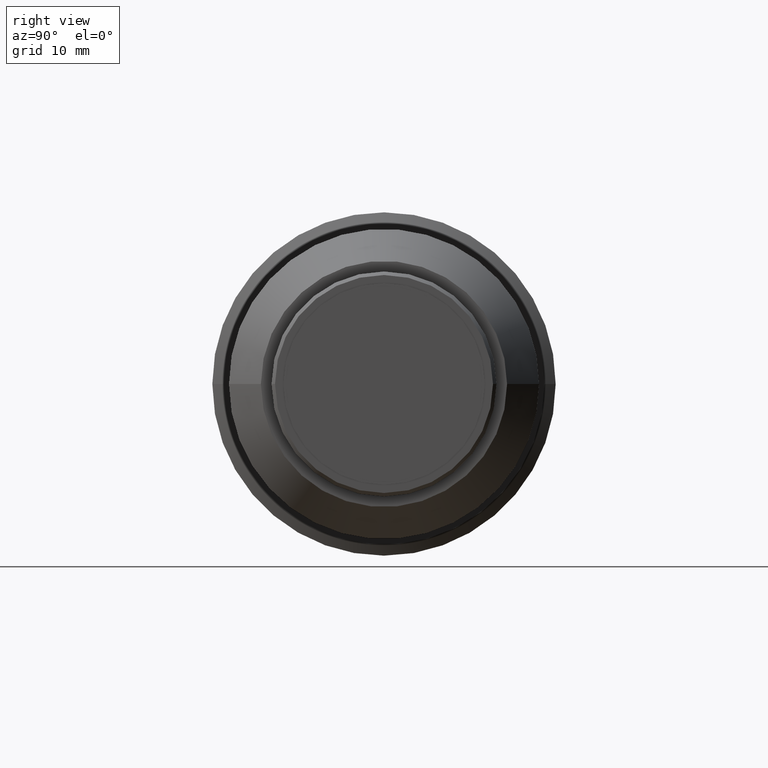
[diagram: clean part render]
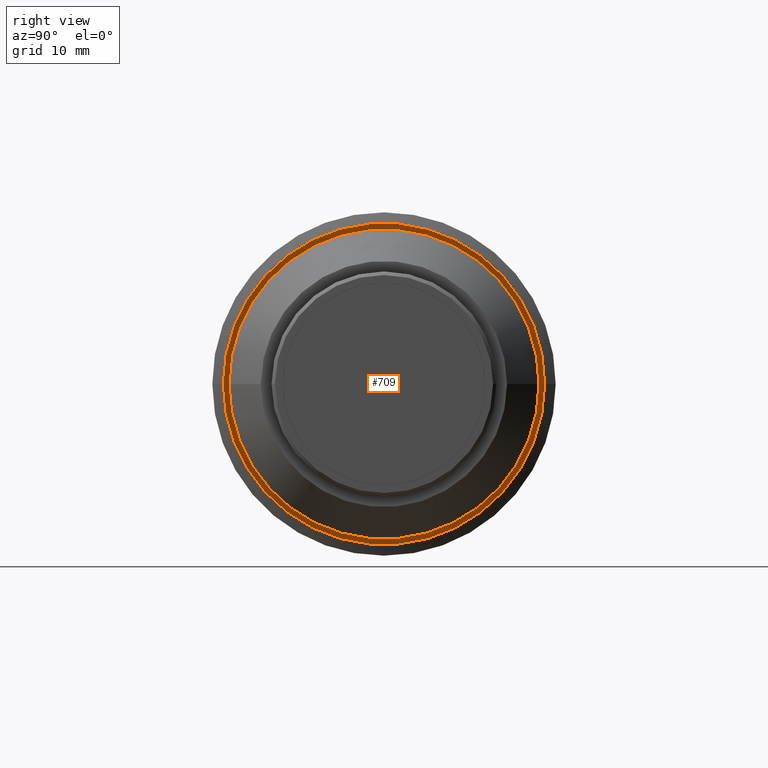
[diagram: same view with one face highlighted and labeled with its STEP entity id]
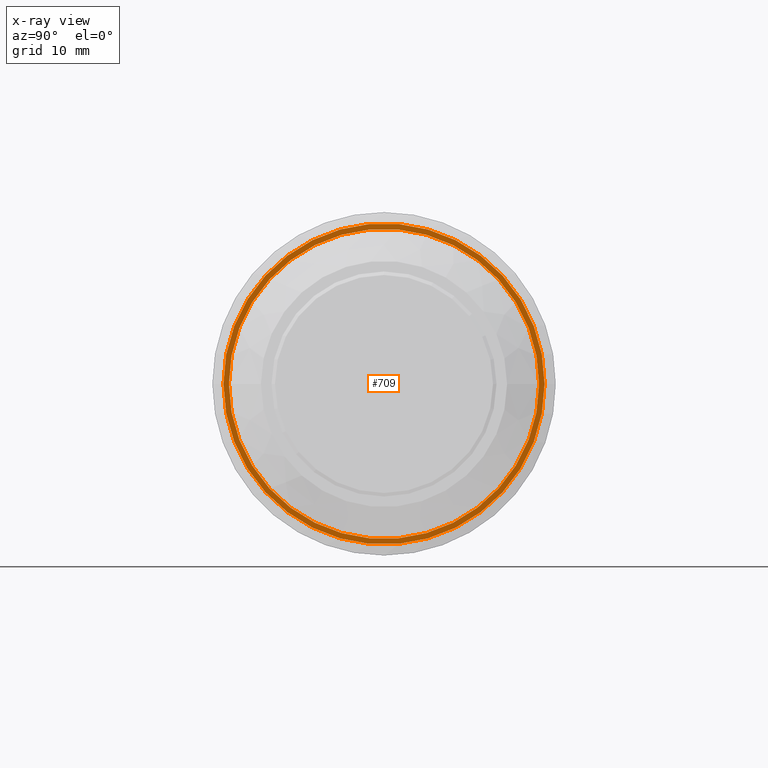
[diagram: x-ray of the same camera — body ghosted, the highlighted face saturated]
A machine part, right view. The second image highlights one B-rep face of the part: STEP entity #709.
The next image is the same camera in x-ray: the body ghosted, the highlighted face saturated — about 0% of this face is hidden behind the body in this view.
In plain terms, the highlighted planar face has unit normal (1, 0, 0).
Its self-contained STEP definition (entity closure, byte-faithful):
#54 = EDGE_LOOP ( 'NONE', ( #568, #129 ) ) ;
#89 = VERTEX_POINT ( 'NONE', #1138 ) ;
#129 = ORIENTED_EDGE ( 'NONE', *, *, #551, .T. ) ;
#139 = DIRECTION ( 'NONE',  ( -1.838806884535414781E-16, 1.000000000000000000, 0.000000000000000000 ) ) ;
#144 = EDGE_CURVE ( 'NONE', #676, #573, #797, .T. ) ;
#179 = ORIENTED_EDGE ( 'NONE', *, *, #627, .F. ) ;
#217 = CARTESIAN_POINT ( 'NONE',  ( -24.10000000000000142, 2.932465768101080134E-15, 0.000000000000000000 ) ) ;
#289 = EDGE_LOOP ( 'NONE', ( #666, #179 ) ) ;
#297 = CARTESIAN_POINT ( 'NONE',  ( -24.10000000000000142, -14.00000000000000000, 1.714505518806294835E-15 ) ) ;
#332 = FACE_BOUND ( 'NONE', #289, .T. ) ;
#360 = CARTESIAN_POINT ( 'NONE',  ( -24.10000000000000142, 2.932465768101080134E-15, 0.000000000000000000 ) ) ;
#401 = EDGE_CURVE ( 'NONE', #89, #1080, #1131, .T. ) ;
#530 = PLANE ( 'NONE',  #769 ) ;
#551 = EDGE_CURVE ( 'NONE', #573, #676, #812, .T. ) ;
#568 = ORIENTED_EDGE ( 'NONE', *, *, #144, .T. ) ;
#573 = VERTEX_POINT ( 'NONE', #1106 ) ;
#582 = AXIS2_PLACEMENT_3D ( 'NONE', #360, #1076, #762 ) ;
#604 = DIRECTION ( 'NONE',  ( -2.478176394252581634E-16, 1.000000000000000000, 0.000000000000000000 ) ) ;
#627 = EDGE_CURVE ( 'NONE', #1080, #89, #1246, .T. ) ;
#645 = CARTESIAN_POINT ( 'NONE',  ( -24.10000000000000142, 14.00000000000000000, 0.000000000000000000 ) ) ;
#666 = ORIENTED_EDGE ( 'NONE', *, *, #401, .F. ) ;
#676 = VERTEX_POINT ( 'NONE', #1318 ) ;
#709 = ADVANCED_FACE ( 'NONE', ( #1132, #332 ), #530, .T. ) ;
#713 = DIRECTION ( 'NONE',  ( 1.000000000000000000, 2.392722035830079958E-16, 0.000000000000000000 ) ) ;
#748 = AXIS2_PLACEMENT_3D ( 'NONE', #217, #713, #1122 ) ;
#762 = DIRECTION ( 'NONE',  ( -2.392722035830078972E-16, 1.000000000000000000, 0.000000000000000000 ) ) ;
#769 = AXIS2_PLACEMENT_3D ( 'NONE', #645, #1059, #139 ) ;
#797 = CIRCLE ( 'NONE', #582, 14.50000000000000000 ) ;
#801 = DIRECTION ( 'NONE',  ( 1.000000000000000000, 2.478176394252585085E-16, 0.000000000000000000 ) ) ;
#812 = CIRCLE ( 'NONE', #748, 14.50000000000000000 ) ;
#813 = DIRECTION ( 'NONE',  ( 1.000000000000000000, 2.478176394252585085E-16, 0.000000000000000000 ) ) ;
#983 = AXIS2_PLACEMENT_3D ( 'NONE', #1099, #813, #604 ) ;
#1059 = DIRECTION ( 'NONE',  ( 1.000000000000000000, 1.838806884535414781E-16, 0.000000000000000000 ) ) ;
#1076 = DIRECTION ( 'NONE',  ( 1.000000000000000000, 2.392722035830079958E-16, 0.000000000000000000 ) ) ;
#1080 = VERTEX_POINT ( 'NONE', #297 ) ;
#1095 = CARTESIAN_POINT ( 'NONE',  ( -24.10000000000000142, 2.932465768101080134E-15, 0.000000000000000000 ) ) ;
#1099 = CARTESIAN_POINT ( 'NONE',  ( -24.10000000000000142, 2.932465768101080134E-15, 0.000000000000000000 ) ) ;
#1106 = CARTESIAN_POINT ( 'NONE',  ( -24.10000000000000142, 14.50000000000000000, 1.836970198721029983E-15 ) ) ;
#1122 = DIRECTION ( 'NONE',  ( -2.392722035830078972E-16, 1.000000000000000000, 0.000000000000000000 ) ) ;
#1131 = CIRCLE ( 'NONE', #1194, 14.00000000000000000 ) ;
#1132 = FACE_OUTER_BOUND ( 'NONE', #54, .T. ) ;
#1138 = CARTESIAN_POINT ( 'NONE',  ( -24.10000000000000142, 14.00000000000000000, 0.000000000000000000 ) ) ;
#1194 = AXIS2_PLACEMENT_3D ( 'NONE', #1095, #801, #1211 ) ;
#1211 = DIRECTION ( 'NONE',  ( -2.478176394252581634E-16, 1.000000000000000000, 0.000000000000000000 ) ) ;
#1246 = CIRCLE ( 'NONE', #983, 14.00000000000000000 ) ;
#1318 = CARTESIAN_POINT ( 'NONE',  ( -24.10000000000000142, -14.50000000000000000, 0.000000000000000000 ) ) ;